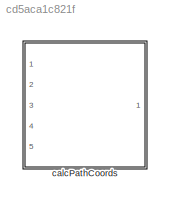
MODEL slx_cd5aca1c821f
KIND library
CONFIG AbsTol = auto
CONFIG EnableMultiTasking = off
CONFIG FixedStep = auto
CONFIG MaxStep = auto
CONFIG MinStep = auto
CONFIG RelTol = 1e-3
CONFIG SampleTimeConstraint = Unconstrained
CONFIG SolverName = VariableStepAuto
CONFIG StartTime = 0.0
CONFIG StopTime = 10.0
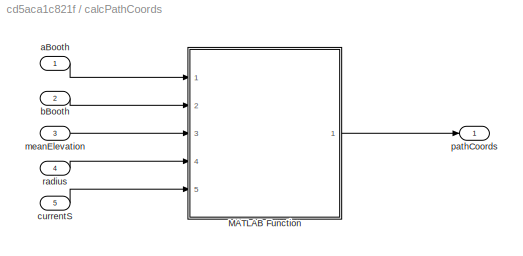
BLOCK [SubSystem] calcPathCoords
  Ports = [5, 1]
  RequestExecContextInheritance = off
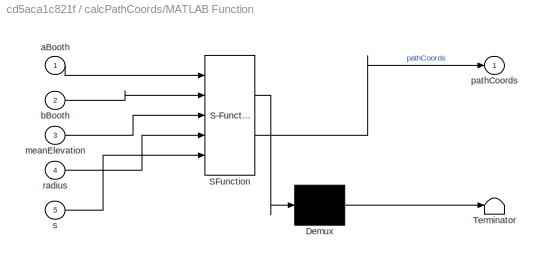
BLOCK [SubSystem] calcPathCoords/MATLAB Function
  ErrorFcn = Stateflow.Translate.translate
  PermitHierarchicalResolution = ExplicitOnly
  Ports = [5, 1]
  RequestExecContextInheritance = off
  SFBlockType = MATLAB Function
  TreatAsAtomicUnit = on
BLOCK [Demux] calcPathCoords/MATLAB Function/ Demux 
  Outputs = 1
  Ports = [1, 1]
BLOCK [S-Function] calcPathCoords/MATLAB Function/ SFunction 
  EnableBusSupport = off
  FunctionName = sf_sfun
  PortCounts = [5 2]
  Ports = [5, 2]
  SFcnIsStateOwnerBlock = off
  SFunctionDeploymentMode = off
  Tag = Stateflow S-Function 2
BLOCK [Terminator] calcPathCoords/MATLAB Function/ Terminator 
BLOCK [Inport] calcPathCoords/MATLAB Function/aBooth
BLOCK [Inport] calcPathCoords/MATLAB Function/bBooth
  Port = 2
BLOCK [Inport] calcPathCoords/MATLAB Function/meanElevation
  Port = 3
BLOCK [Outport] calcPathCoords/MATLAB Function/pathCoords
BLOCK [Inport] calcPathCoords/MATLAB Function/radius
  Port = 4
BLOCK [Inport] calcPathCoords/MATLAB Function/s
  Port = 5
BLOCK [Inport] calcPathCoords/aBooth
BLOCK [Inport] calcPathCoords/bBooth
  Port = 2
BLOCK [Inport] calcPathCoords/currentS
  Port = 5
BLOCK [Inport] calcPathCoords/meanElevation
  Port = 3
BLOCK [Outport] calcPathCoords/pathCoords
  PortDimensions = [3,1]
BLOCK [Inport] calcPathCoords/radius
  Port = 4
LINE calcPathCoords/MATLAB Function:1 -> calcPathCoords/pathCoords:1
LINE calcPathCoords/aBooth:1 -> calcPathCoords/MATLAB Function:1
LINE calcPathCoords/bBooth:1 -> calcPathCoords/MATLAB Function:2
LINE calcPathCoords/currentS:1 -> calcPathCoords/MATLAB Function:5
LINE calcPathCoords/meanElevation:1 -> calcPathCoords/MATLAB Function:3
LINE calcPathCoords/radius:1 -> calcPathCoords/MATLAB Function:4
CHART calcPathCoords/MATLAB Function states=1 transitions=1
  STATE_LABEL 'eML_blk_kernel()'
  STATE_LABEL 'SCRIPT:\nfunction pathCoords = getPathCoords(aBooth,bBooth,meanElevation,radius,s)\n\npathCoords = getPathCoords(aBooth,bBooth,meanElevation,radius,s);\n\nend\n'
CHART  states=0 transitions=0
